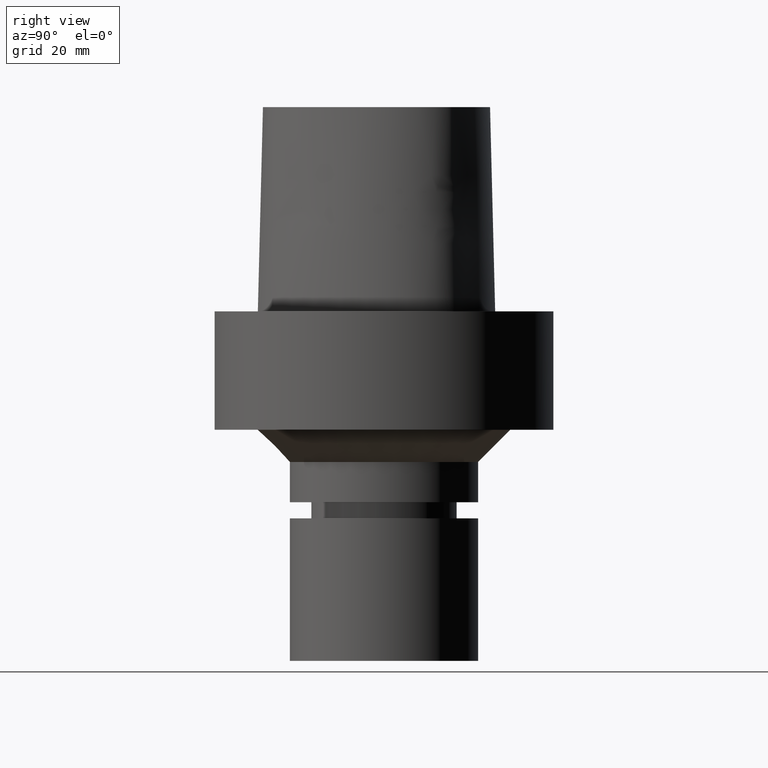
[diagram: clean part render]
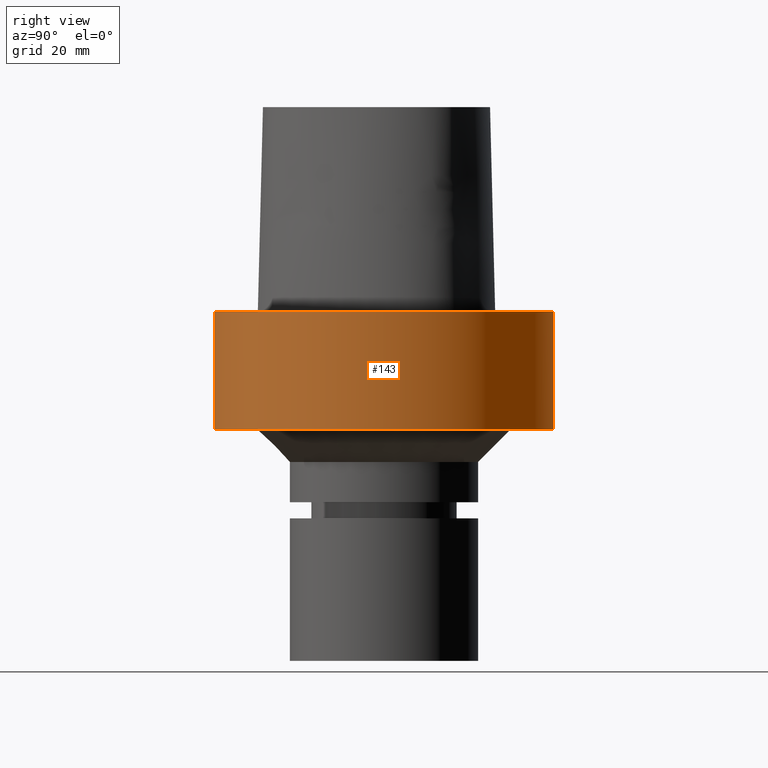
[diagram: same view with one face highlighted and labeled with its STEP entity id]
A machine part, right view. The second image highlights one B-rep face of the part: STEP entity #143.
In plain terms, the highlighted cylindrical surface (bore or boss wall) has radius 31.5 mm, axis along (0, 0, -1).
Its self-contained STEP definition (entity closure, byte-faithful):
#138=EDGE_CURVE('Unnamed[1]',#289,#289,#290,.T.);
#143=ADVANCED_FACE('Unnamed[1]',(#296,#297),#298,.T.);
#152=EDGE_CURVE('Unnamed[1]',#310,#310,#311,.T.);
#289=VERTEX_POINT('',#517);
#290=CIRCLE('',#518,31.5);
#296=FACE_BOUND('',#526,.T.);
#297=FACE_BOUND('',#527,.T.);
#298=CYLINDRICAL_SURFACE('',#528,31.5);
#310=VERTEX_POINT('',#561);
#311=CIRCLE('',#562,31.5);
#517=CARTESIAN_POINT('',(1.34711147906212E-015,31.5,-22.0000000000006));
#518=AXIS2_PLACEMENT_3D('',#837,#838,#839);
#526=EDGE_LOOP('',(#844));
#527=EDGE_LOOP('',(#845));
#528=AXIS2_PLACEMENT_3D('',#846,#847,#848);
#561=CARTESIAN_POINT('',(-3.88267476788467E-031,31.5,3.85763741731416E-015));
#562=AXIS2_PLACEMENT_3D('',#858,#859,#860);
#837=CARTESIAN_POINT('',(1.34711147906212E-015,2.69422295812425E-015,-22.0000000000006));
#838=DIRECTION('',(6.12323399573677E-017,1.22464679914735E-016,-1.0));
#839=DIRECTION('',(-1.23259516440783E-032,1.0,1.22464679914735E-016));
#844=ORIENTED_EDGE('',*,*,#138,.F.);
#845=ORIENTED_EDGE('',*,*,#152,.T.);
#846=CARTESIAN_POINT('',(6.73555739531062E-016,1.34711147906212E-015,-11.0000000000003));
#847=DIRECTION('',(6.12323399573677E-017,1.22464679914735E-016,-1.0));
#848=DIRECTION('',(-1.23259516440783E-032,1.0,1.22464679914735E-016));
#858=CARTESIAN_POINT('',(0.0,0.0,0.0));
#859=DIRECTION('',(6.12323399573677E-017,1.22464679914735E-016,-1.0));
#860=DIRECTION('',(-1.23259516440783E-032,1.0,1.22464679914735E-016));